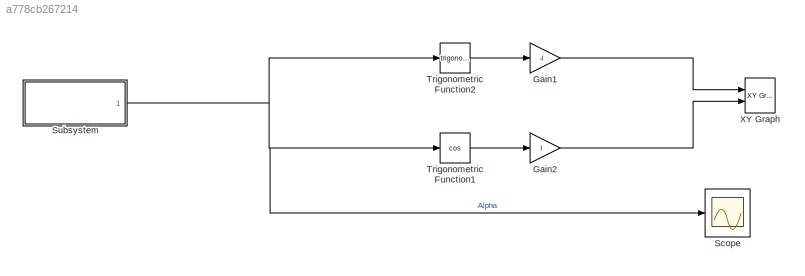
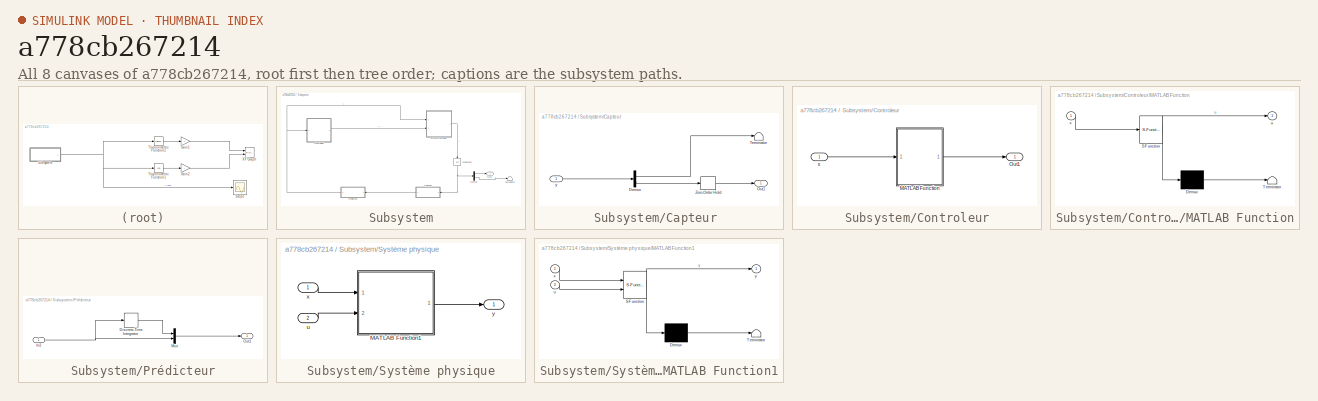
[diagram: thumbnail index - all 8 canvases of the model, root first then tree order]
MODEL slx_a778cb267214
KIND model
CONFIG AbsTol = auto
CONFIG FixedStep = h
CONFIG MaxStep = auto
CONFIG MinStep = auto
CONFIG RelTol = 1e-3
CONFIG SampleTimeConstraint = Unconstrained
CONFIG Solver = VariableStepAuto
CONFIG SolverMode = Auto
CONFIG SolverName = VariableStepAuto
CONFIG StartTime = t0
CONFIG StopTime = 200
BLOCK [Gain] Gain1
  Gain = -l
  OutDataTypeStr = Inherit: Inherit via internal rule
  ParamDataTypeStr = Inherit: Inherit via internal rule
  SaturateOnIntegerOverflow = off
BLOCK [Gain] Gain2
  Gain = l
  OutDataTypeStr = Inherit: Inherit via internal rule
  ParamDataTypeStr = Inherit: Inherit via internal rule
  SaturateOnIntegerOverflow = off
BLOCK [Scope] Scope
  Ports = [1]
  ScopeSpecificationString = Simulink.scopes.TimeScopeBlockCfg('CurrentConfiguration', extmgr.ConfigurationSet(extmgr.Configuration('Core','General UI',true),extmgr.Configuration('Core','Source UI',true),extmgr.Configuration('Sources','WiredSimulink',true),extmgr.Configuration('Visuals','Time Domain',true,'SerializedDisplays',{struct('MinYLimReal','-0.9819','MaxYLimReal','3.09722','YLabelReal','','MinYLimMag','0.00000','MaxYL...<+1423ch>
BLOCK [SubSystem] Subsystem
  Ports = [0, 1]
  RequestExecContextInheritance = off
  Variant = off
BLOCK [SubSystem] Subsystem/Capteur 
  Ports = [1, 1]
  RequestExecContextInheritance = off
  Variant = off
BLOCK [Demux] Subsystem/Capteur /Demux
  DisplayOption = bar
  Outputs = 2
  Ports = [1, 2]
BLOCK [Outport] Subsystem/Capteur /Out1
  IconDisplay = Port number
BLOCK [Terminator] Subsystem/Capteur /Terminator
BLOCK [ZeroOrderHold] Subsystem/Capteur /Zero-Order Hold
  SampleTime = 25*h
BLOCK [Inport] Subsystem/Capteur /y
  IconDisplay = Port number
BLOCK [SubSystem] Subsystem/Controleur
  Ports = [1, 1]
  RequestExecContextInheritance = off
  Variant = off
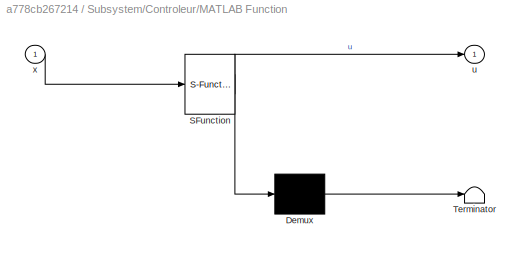
BLOCK [SubSystem] Subsystem/Controleur/MATLAB Function
  ErrorFcn = Stateflow.Translate.translate
  PermitHierarchicalResolution = ExplicitOnly
  Ports = [1, 1]
  RequestExecContextInheritance = off
  SFBlockType = MATLAB Function
  TreatAsAtomicUnit = on
  Variant = off
BLOCK [Demux] Subsystem/Controleur/MATLAB Function/ Demux 
  Outputs = 1
  Ports = [1, 1]
BLOCK [S-Function] Subsystem/Controleur/MATLAB Function/ SFunction 
  EnableBusSupport = on
  FunctionName = sf_sfun
  PortCounts = [1 2]
  Ports = [1, 2]
  SFunctionDeploymentMode = off
  Tag = Stateflow S-Function segway_TP3_sensors 3
BLOCK [Terminator] Subsystem/Controleur/MATLAB Function/ Terminator 
BLOCK [Outport] Subsystem/Controleur/MATLAB Function/u
  IconDisplay = Port number
BLOCK [Inport] Subsystem/Controleur/MATLAB Function/x
  IconDisplay = Port number
BLOCK [Outport] Subsystem/Controleur/Out1
  IconDisplay = Port number
BLOCK [Inport] Subsystem/Controleur/x
  IconDisplay = Port number
BLOCK [Demux] Subsystem/Demux
  DisplayOption = bar
  Outputs = 2
  Ports = [1, 2]
BLOCK [Integrator] Subsystem/Integrator
  InitialCondition = pi/4
  Ports = [1, 1]
BLOCK [Outport] Subsystem/Out1
  IconDisplay = Port number
BLOCK [SubSystem] Subsystem/Prédicteur
  Ports = [1, 1]
  RequestExecContextInheritance = off
  Variant = off
BLOCK [DiscreteIntegrator] Subsystem/Prédicteur/Discrete-Time Integrator
  ICPrevOutput = DiscIntNeverNeededParam
  ICPrevScaledInput = DiscIntNeverNeededParam
  InitialConditionSetting = State (most efficient)
  Ports = [1, 1]
  SampleTime = 25*h
BLOCK [Inport] Subsystem/Prédicteur/In2
  IconDisplay = Port number
BLOCK [Mux] Subsystem/Prédicteur/Mux
  DisplayOption = bar
  Inputs = 2
  Ports = [2, 1]
BLOCK [Outport] Subsystem/Prédicteur/Out1
  IconDisplay = Port number
BLOCK [SubSystem] Subsystem/Système physique
  Ports = [2, 1]
  RequestExecContextInheritance = off
  Variant = off
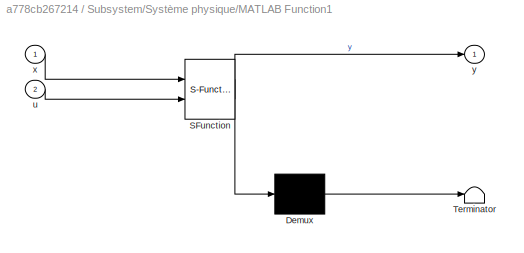
BLOCK [SubSystem] Subsystem/Système physique/MATLAB Function1
  ErrorFcn = Stateflow.Translate.translate
  PermitHierarchicalResolution = ExplicitOnly
  Ports = [2, 1]
  RequestExecContextInheritance = off
  SFBlockType = MATLAB Function
  TreatAsAtomicUnit = on
  Variant = off
BLOCK [Demux] Subsystem/Système physique/MATLAB Function1/ Demux 
  Outputs = 1
  Ports = [1, 1]
BLOCK [S-Function] Subsystem/Système physique/MATLAB Function1/ SFunction 
  EnableBusSupport = on
  FunctionName = sf_sfun
  PortCounts = [2 2]
  Ports = [2, 2]
  SFunctionDeploymentMode = off
  Tag = Stateflow S-Function segway_TP3_sensors 1
BLOCK [Terminator] Subsystem/Système physique/MATLAB Function1/ Terminator 
BLOCK [Inport] Subsystem/Système physique/MATLAB Function1/u
  IconDisplay = Port number
  Port = 2
BLOCK [Inport] Subsystem/Système physique/MATLAB Function1/x
  IconDisplay = Port number
BLOCK [Outport] Subsystem/Système physique/MATLAB Function1/y
  IconDisplay = Port number
BLOCK [Inport] Subsystem/Système physique/u
  IconDisplay = Port number
  Port = 2
BLOCK [Inport] Subsystem/Système physique/x
  IconDisplay = Port number
BLOCK [Outport] Subsystem/Système physique/y
  IconDisplay = Port number
BLOCK [Terminator] Subsystem/Terminator
BLOCK [Trigonometry] Trigonometric Function1
  Operator = cos
  Ports = [1, 1]
BLOCK [Trigonometry] Trigonometric Function2
  Ports = [1, 1]
BLOCK [Reference] XY Graph  REF=simulink/Sinks/XY Graph
  Ports = [2]
  SourceBlock = simulink/Sinks/XY Graph
  SourceType = XY scope.
LINE Gain1:1 -> XY Graph:1
LINE Gain2:1 -> XY Graph:2
LINE Subsystem/Capteur /Demux:1 -> Subsystem/Capteur /Terminator:1
LINE Subsystem/Capteur /Demux:2 -> Subsystem/Capteur /Zero-Order Hold:1
LINE Subsystem/Capteur /Zero-Order Hold:1 -> Subsystem/Capteur /Out1:1
LINE Subsystem/Capteur /y:1 -> Subsystem/Capteur /Demux:1
LINE Subsystem/Capteur :1 -> Subsystem/Prédicteur:1
LINE Subsystem/Controleur/MATLAB Function:1 -> Subsystem/Controleur/Out1:1
LINE Subsystem/Controleur/x:1 -> Subsystem/Controleur/MATLAB Function:1
LINE Subsystem/Controleur:1 -> Subsystem/Système physique:2
LINE Subsystem/Demux:1 -> Subsystem/Out1:1
LINE Subsystem/Demux:2 -> Subsystem/Terminator:1
NET Subsystem/Integrator:1 -> Subsystem/Capteur :1, Subsystem/Demux:1
LINE Subsystem/Prédicteur/Discrete-Time Integrator:1 -> Subsystem/Prédicteur/Mux:1
NET Subsystem/Prédicteur/In2:1 -> Subsystem/Prédicteur/Discrete-Time Integrator:1, Subsystem/Prédicteur/Mux:2
LINE Subsystem/Prédicteur/Mux:1 -> Subsystem/Prédicteur/Out1:1
NET Subsystem/Prédicteur:1 -> Subsystem/Controleur:1, Subsystem/Système physique:1
LINE Subsystem/Système physique/MATLAB Function1:1 -> Subsystem/Système physique/y:1
LINE Subsystem/Système physique/u:1 -> Subsystem/Système physique/MATLAB Function1:2
LINE Subsystem/Système physique/x:1 -> Subsystem/Système physique/MATLAB Function1:1
LINE Subsystem/Système physique:1 -> Subsystem/Integrator:1
NET Subsystem:1 -> Scope:1, Trigonometric Function1:1, Trigonometric Function2:1
LINE Trigonometric Function1:1 -> Gain2:1
LINE Trigonometric Function2:1 -> Gain1:1
note: NET lines group one-source signal fan-out (src -> all destinations, sorted); 1:1 wires keep LINE
CHART Subsystem/Système physique/MATLAB Function1 states=1 transitions=1
  STATE_LABEL 'eML_blk_kernel()'
  STATE_LABEL 'SCRIPT:\nfunction y = pendule_inverse(x,u)\n    g = 9.81;\n    l = 10;\n    \n    y = zeros(2,1);\n    y(1) = x(2);\n    y(2) = g/l*sin(x(1))-((u*cos(x(1)))/l);\nend'
CHART Subsystem/Controleur/MATLAB Function states=1 transitions=1
  STATE_LABEL 'eML_blk_kernel()'
  STATE_LABEL "SCRIPT:\nfunction u = calcul_u(x)\n    ue = 0;\n    xe = [0;0];\n    K = [20;10];\n    \n    u = ue + K'*(x-xe);\nend\n\n"
